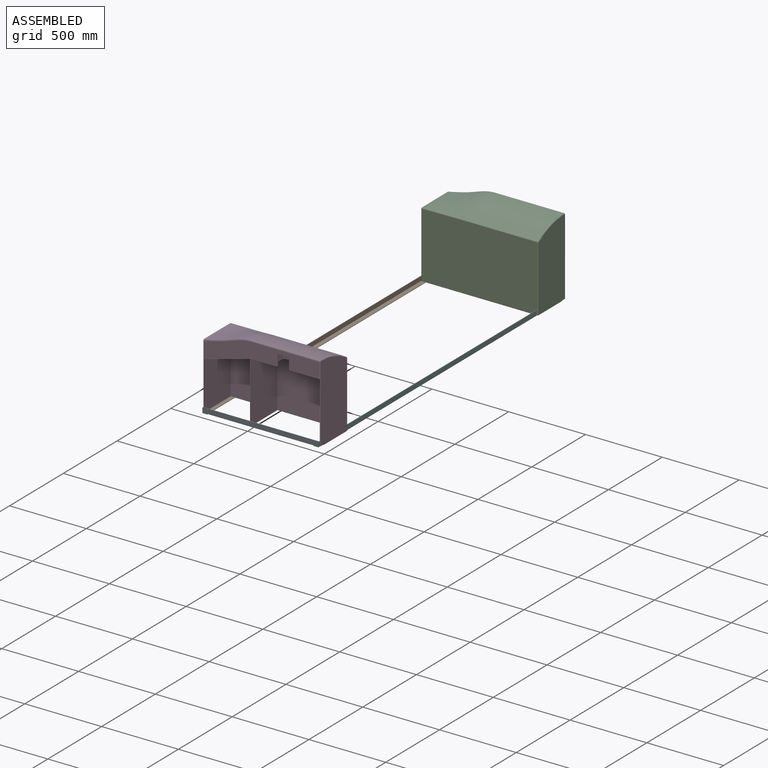
[diagram: assembled view]
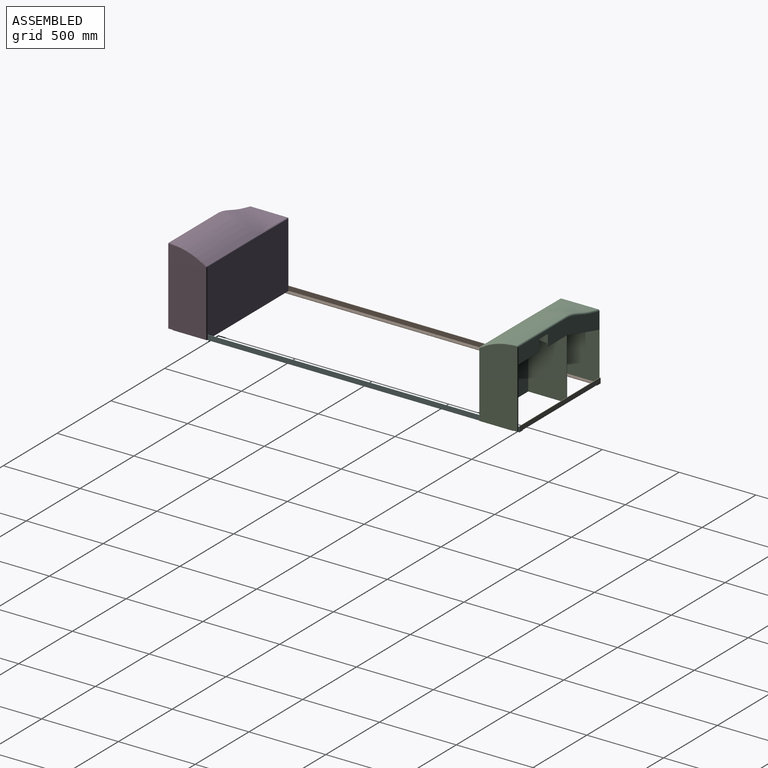
[diagram: assembled view, second angle]
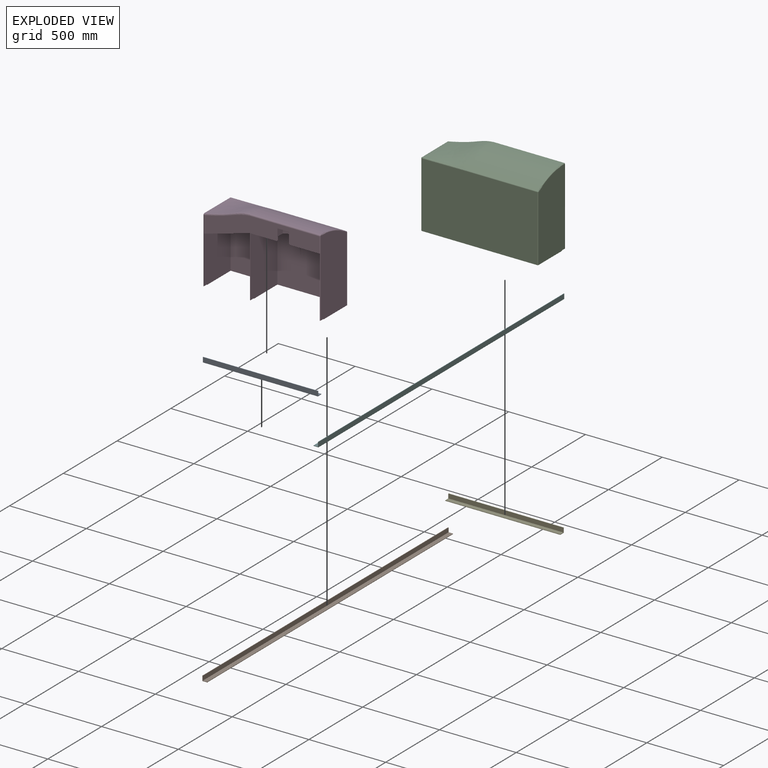
[diagram: exploded view]
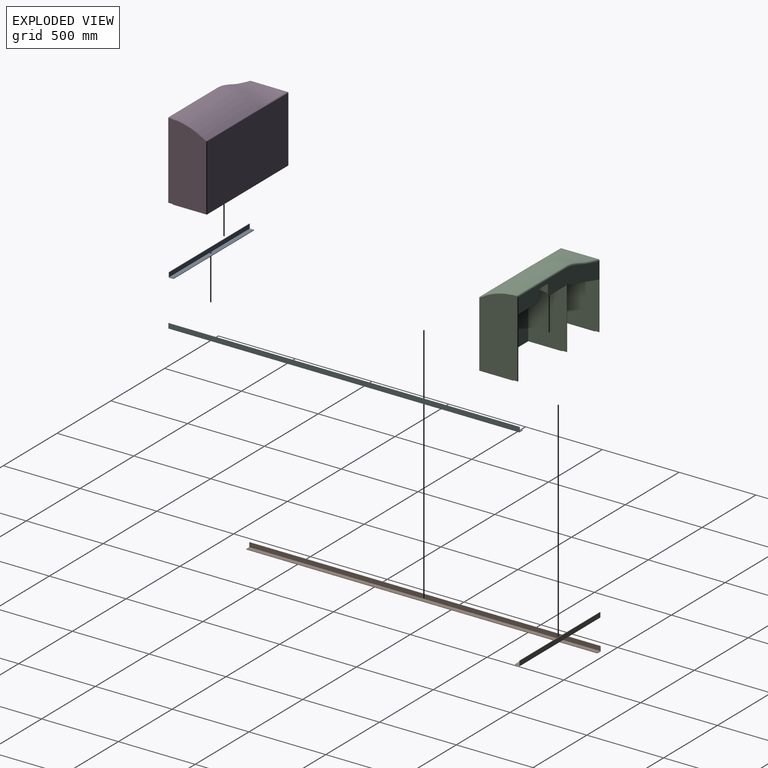
[diagram: exploded view, second angle]
ASSEMBLY  parts=6 mates=5
PART A: 8 faces, bbox 749.3x31.8x31.8 mm
  f0: plane 31.75x31.75mm, normal (1,0,0), area 191.5mm2, adj f2,f3,f4,f5,f6,f7
  f1: plane 31.75x31.75mm, normal (-1,0,0), area 191.5mm2, adj f2,f3,f4,f5,f6,f7
  f2: plane 749.3x3.18mm, normal (0,0,1), area 2379mm2, adj f0,f1,f5,f7
  f3: plane 749.3x31.75mm, normal (0,0,-1), area 23790.3mm2, adj f0,f1,f4,f5
  f4: plane 749.3x3.18mm, normal (0,1,0), area 2379mm2, adj f0,f1,f3,f6
  f5: plane 749.3x31.75mm, normal (0,-1,0), area 23790.3mm2, adj f0,f1,f2,f3
  f6: plane 749.3x28.58mm, normal (0,0,1), area 21411.2mm2, adj f0,f1,f4,f7
  f7: plane 749.3x28.58mm, normal (0,1,0), area 21411.2mm2, adj f0,f1,f2,f6
PART B: 8 faces, bbox 2286x31.8x31.8 mm
  f0: plane 2286x3.18mm, normal (0,0,1), area 7258.1mm2, adj f1,f2,f5,f7
  f1: plane 31.75x31.75mm, normal (1,0,0), area 191.5mm2, adj f0,f3,f4,f5,f6,f7
  f2: plane 31.75x31.75mm, normal (-1,0,0), area 191.5mm2, adj f0,f3,f4,f5,f6,f7
  f3: plane 2286x31.75mm, normal (0,0,-1), area 72580.5mm2, adj f1,f2,f4,f5
  f4: plane 2286x3.18mm, normal (0,1,0), area 7258.1mm2, adj f1,f2,f3,f6
  f5: plane 2286x31.75mm, normal (0,-1,0), area 72580.5mm2, adj f0,f1,f2,f3
  f6: plane 2286x28.58mm, normal (0,0,1), area 65322.4mm2, adj f1,f2,f4,f7
  f7: plane 2286x28.58mm, normal (0,1,0), area 65322.4mm2, adj f0,f1,f2,f6
PART C: 87 faces, bbox 278.7x783.5x551.9 mm
  f0: cylinder r=454.03mm len=146.05mm, axis (0,-1,0), area 10769.9mm2, adj f15,f16,f51,f74
  f1: cylinder r=454.03mm len=149.23mm, axis (0,-1,0), area 11004mm2, adj f12,f52,f54,f71
  f2: cylinder r=454.03mm len=149.23mm, axis (0,-1,0), area 11004mm2, adj f32,f33,f55,f68
  f3: plane 281.86x168.28mm, normal (0,1,0), area 18365.2mm2, adj f30,f31,f53,f66,f67
  f4: offset ~311.15x236.89mm, area 12990.7mm2, adj f9,f17,f58,f64
  f5: plane 247.49x165.44mm, normal (0,-1,0), area 17317.5mm2, adj f7,f37,f57,f63
  f6: offset ~511.13x260.91mm, area 12300.5mm2, adj f36,f38,f56,f60
  f7: plane 430.37x301.9mm, normal (1,0,0), area 128847mm2, adj f5,f8,f17,f18,f36,f37,f56,f57
  f8: offset ~260.44x199.93mm, area 24531.4mm2, adj f7,f36,f56,f59
  f9: plane 154.68x145.95mm, normal (-1,0,0), area 16528.6mm2, adj f4,f17,f39,f58
  f10: plane 149.23x101.6mm, normal (-1,0,0), area 9354.8mm2, adj f12,f40,f41,f42,f43,f44,f45,f46
  f11: cylinder r=454.03mm len=165.1mm, axis (0,-1,0), area 26751.3mm2, adj f30,f52,f54,f69
  f12: cylinder r=5.97mm len=149.23mm, axis (0,-1,0), area 1414.8mm2, adj f1,f10,f52,f54
  f13: plane 146.05x101.6mm, normal (-1,0,0), area 14838.7mm2, adj f15,f16,f48,f51
  f14: cylinder r=454.03mm len=165.1mm, axis (0,-1,0), area 26182.1mm2, adj f16,f30,f51,f72
  f15: cylinder r=5.97mm len=146.05mm, axis (0,-1,0), area 1384.7mm2, adj f0,f13,f16,f51
  f16: plane 504.76x250.45mm, normal (0,1,0), area 119735.9mm2, adj f0,f13,f14,f15,f18,f22,f23,f30
  f17: plane 504.96x251mm, normal (0,1,0), area 119702.3mm2, adj f4,f7,f9,f18,f19,f20,f21,f37
  f18: plane 762x222.25mm, normal (0,0,-1), area 4495mm2, adj f7,f16,f17,f19,f22,f24,f28,f29
  f19: plane 3.18x3.18mm, normal (1,0,0), area 10.1mm2, adj f17,f18,f20,f33
  f20: plane 31.75x3.18mm, normal (0,0,-1), area 100.8mm2, adj f17,f19,f21,f33
  f21: plane 756.33x500.1mm, normal (1,0,0), area 73851.5mm2, adj f17,f20,f26,f33,f35,f39,f40,f41
  f22: plane 3.18x3.18mm, normal (1,0,0), area 10.1mm2, adj f16,f18,f23,f29
  f23: plane 31.38x3.18mm, normal (0,0,-1), area 95.5mm2, adj f16,f22,f29,f75
  f24: plane 751.84x429.06mm, normal (-1,0,0), area 322275.4mm2, adj f18,f77,f80,f81,f82
  f25: cylinder r=457.2mm len=452.12mm, axis (0,-1,0), area 116191.5mm2, adj f26,f35,f78,f80
  f26: cylinder r=9.14mm len=452.12mm, axis (0,-1,0), area 6566.6mm2, adj f21,f25,f35,f76
  f27: plane 31.38x3.18mm, normal (0,0,-1), area 95.5mm2, adj f28,f34,f36,f86
  f28: plane 3.18x3.18mm, normal (1,0,0), area 10.1mm2, adj f18,f27,f34,f36
  f29: plane 502.85x243.84mm, normal (0,-1,0), area 116661.4mm2, adj f18,f22,f23,f75,f76,f77,f78
  f30: plane 450.85x430.09mm, normal (1,0,0), area 192541.5mm2, adj f3,f11,f14,f16,f18,f31,f33,f50
  f31: cylinder r=454.03mm len=165.1mm, axis (0,-1,0), area 26751.3mm2, adj f3,f30,f33,f66
  f32: cylinder r=5.97mm len=149.23mm, axis (0,-1,0), area 1414.8mm2, adj f2,f33,f49,f55
  f33: plane 504.76x250.83mm, normal (0,-1,0), area 119703mm2, adj f2,f18,f19,f20,f21,f30,f31,f32
  f34: plane 427.69x243.84mm, normal (0,1,0), area 104122.3mm2, adj f18,f27,f28,f81,f84,f85,f86
  f35: bspline ~304.8x254mm, area 79752.1mm2, adj f21,f25,f26,f82,f84,f85
  f36: plane 433.98x255.2mm, normal (0,-1,0), area 106860.6mm2, adj f6,f7,f8,f18,f27,f28,f38,f39
  f37: offset ~311.15x199.93mm, area 26877.1mm2, adj f5,f7,f17,f63
  f38: plane 149.23x146.66mm, normal (-1,0,0), area 15527.3mm2, adj f6,f36,f39,f56,f57
  f39: plane 301.63x82.34mm, normal (0,-0.26,-0.96), area 992.5mm2, adj f9,f17,f21,f36,f38,f86
  f40: plane 169.36x3.18mm, normal (0,0,-1), area 537.7mm2, adj f10,f21,f33,f41,f49,f53
  f41: cylinder r=6.35mm len=6.35mm, axis (1,0,0), area 31.7mm2, adj f10,f21,f40,f42
  f42: plane 63.5x3.18mm, normal (0,-1,0), area 201.6mm2, adj f10,f21,f41,f43
  f43: cylinder r=6.35mm len=6.35mm, axis (1,0,0), area 31.7mm2, adj f10,f21,f42,f44
  f44: plane 63.5x3.18mm, normal (0,0,-1), area 201.6mm2, adj f10,f21,f43,f45
  f45: cylinder r=6.35mm len=6.35mm, axis (1,0,0), area 31.7mm2, adj f10,f21,f44,f46
  f46: plane 63.5x3.18mm, normal (0,1,0), area 201.6mm2, adj f10,f21,f45,f47
  f47: cylinder r=6.35mm len=6.35mm, axis (1,0,0), area 31.7mm2, adj f10,f21,f46,f48
  f48: plane 192.59x3.18mm, normal (0,0,-1), area 611.2mm2, adj f10,f13,f16,f21,f47,f50,f75
  f49: plane 149.23x101.6mm, normal (-1,0,0), area 15161.3mm2, adj f32,f33,f40,f55
  f50: cylinder r=190.81mm len=247.65mm, axis (0,1,0), area 1134.9mm2, adj f30,f48,f51,f52
  f51: plane 289.71x247.65mm, normal (0,-1,0), area 26244.9mm2, adj f0,f13,f14,f15,f30,f50,f72,f73
  f52: plane 289.71x247.65mm, normal (0,1,0), area 26244.9mm2, adj f1,f10,f11,f12,f30,f50,f69,f70
  f53: cylinder r=190.81mm len=247.65mm, axis (0,1,0), area 1134.9mm2, adj f3,f30,f40,f54,f55
  f54: plane 289.71x247.65mm, normal (0,-1,0), area 26190.4mm2, adj f1,f10,f11,f12,f30,f53,f69,f70
  f55: plane 107.57x79.38mm, normal (0,1,0), area 7822.8mm2, adj f2,f32,f49,f53,f68
  f56: plane 250.98x247.91mm, normal (0,1,0), area 24670.3mm2, adj f6,f7,f8,f38,f57,f59,f60,f61
  f57: cylinder r=163.4mm len=247.65mm, axis (0,-1,0), area 1096mm2, adj f5,f7,f38,f56,f58,f62
  f58: plane 111.72x79.38mm, normal (0,-1,0), area 7520mm2, adj f4,f9,f57,f64
  f59: plane 147.08x83.94mm, normal (-1,0,0), area 9268.3mm2, adj f8,f36,f56,f61
  f60: plane 146.47x83.64mm, normal (1,0,0), area 9289.9mm2, adj f6,f36,f56,f61
  f61: cylinder r=811.85mm len=146.05mm, axis (1,0,0), area 464.3mm2, adj f36,f56,f59,f60
  f62: plane 3.18x0.06mm, normal (0,1,0), area 0.1mm2, adj f57,f63,f65
  f63: plane 155.26x150.65mm, normal (-1,0,0), area 17821.7mm2, adj f5,f17,f37,f62,f65
  f64: plane 155.17x151.16mm, normal (1,0,0), area 17897.4mm2, adj f4,f17,f58,f65
  f65: cylinder r=811.85mm len=152.4mm, axis (1,0,0), area 493.3mm2, adj f17,f62,f63,f64
  f66: plane 149.23x148.74mm, normal (-1,0,0), area 17462.5mm2, adj f3,f31,f33,f67
  f67: cylinder r=643.04mm len=149.23mm, axis (1,0,0), area 507.8mm2, adj f3,f33,f66,f68
  f68: plane 149.33x149.23mm, normal (1,0,0), area 17550.4mm2, adj f2,f33,f55,f67
  f69: plane 149.23x91.63mm, normal (-1,0,0), area 11950.6mm2, adj f11,f52,f54,f70
  f70: cylinder r=643.04mm len=149.23mm, axis (1,0,0), area 478mm2, adj f52,f54,f69,f71
  f71: plane 149.23x92.22mm, normal (1,0,0), area 12038.6mm2, adj f1,f52,f54,f70
  f72: plane 146.05x92.39mm, normal (-1,0,0), area 11769.9mm2, adj f14,f16,f51,f73
  f73: cylinder r=643.04mm len=146.05mm, axis (1,0,0), area 468.2mm2, adj f16,f51,f72,f74
  f74: plane 146.05x92.97mm, normal (1,0,0), area 11856mm2, adj f0,f16,f51,f73
  f75: cylinder r=5.08mm len=495.61mm, axis (0,0,-1), area 3185.4mm2, adj f16,f21,f23,f29,f48,f76
  f76: torus R=4.06mm, axis (0,-1,0), area 92.5mm2, adj f26,f29,f75,f78
  f77: cylinder r=5.08mm len=429.06mm, axis (0,0,1), area 3423.8mm2, adj f18,f24,f29,f79
  f78: torus R=452.12mm, axis (0,-1,0), area 2042.4mm2, adj f25,f29,f76,f79
  f79: sphere r=5.08mm, area 25.6mm2, adj f77,f78,f80
  f80: cylinder r=5.08mm len=452.12mm, axis (0,-1,0), area 2276.4mm2, adj f24,f25,f79,f82
  f81: cylinder r=5.08mm len=426.76mm, axis (0,0,-1), area 3405.4mm2, adj f18,f24,f34,f83
  f82: bspline ~395.27x6.72mm, area 1930.3mm2, adj f24,f35,f80,f83
  f83: sphere r=5.08mm, area 25.7mm2, adj f81,f82,f84
  f84: bspline ~255x6.01mm, area 1746.2mm2, adj f34,f35,f83,f85
  f85: bspline ~10.46x8.95mm, area 81mm2, adj f34,f35,f84,f86
  f86: cylinder r=5.08mm len=420.56mm, axis (0,0,-1), area 2748.5mm2, adj f21,f27,f34,f36,f39,f85
PART D: 87 faces, bbox 278.7x783.5x551.9 mm
  f0: cylinder r=454.03mm len=146.05mm, axis (0,-1,0), area 10769.9mm2, adj f15,f16,f51,f74
  f1: cylinder r=454.03mm len=149.23mm, axis (0,-1,0), area 11004mm2, adj f12,f52,f54,f71
  f2: cylinder r=454.03mm len=149.23mm, axis (0,-1,0), area 11004mm2, adj f32,f33,f55,f68
  f3: plane 281.86x168.28mm, normal (0,1,0), area 18365.2mm2, adj f30,f31,f53,f66,f67
  f4: offset ~311.15x236.89mm, area 12990.7mm2, adj f9,f17,f58,f64
  f5: plane 248.33x166.28mm, normal (0,-1,0), area 17317.6mm2, adj f7,f37,f57,f63
  f6: offset ~511.13x260.91mm, area 12300.5mm2, adj f36,f38,f56,f60
  f7: plane 430.37x301.9mm, normal (-1,0,0), area 128847mm2, adj f5,f8,f17,f18,f36,f37,f56,f57
  f8: offset ~260.44x199.93mm, area 24531.4mm2, adj f7,f36,f56,f59
  f9: plane 154.28x145.95mm, normal (1,0,0), area 16497.3mm2, adj f4,f17,f39,f58
  f10: plane 149.23x101.6mm, normal (1,0,0), area 9354.8mm2, adj f12,f40,f41,f42,f43,f44,f45,f46
  f11: cylinder r=454.03mm len=165.1mm, axis (0,-1,0), area 26751.3mm2, adj f30,f52,f54,f69
  f12: cylinder r=5.97mm len=149.23mm, axis (0,-1,0), area 1414.8mm2, adj f1,f10,f52,f54
  f13: plane 146.05x101.6mm, normal (1,0,0), area 14838.7mm2, adj f15,f16,f48,f51
  f14: cylinder r=454.03mm len=165.1mm, axis (0,-1,0), area 26182.1mm2, adj f16,f30,f51,f72
  f15: cylinder r=5.97mm len=146.05mm, axis (0,-1,0), area 1384.7mm2, adj f0,f13,f16,f51
  f16: plane 504.76x250.45mm, normal (0,1,0), area 119735.9mm2, adj f0,f13,f14,f15,f18,f22,f23,f30
  f17: plane 504.96x251mm, normal (0,1,0), area 119705.1mm2, adj f4,f7,f9,f18,f19,f20,f21,f37
  f18: plane 762x222.25mm, normal (0,0,-1), area 4495mm2, adj f7,f16,f17,f19,f22,f24,f28,f29
  f19: plane 3.18x3.18mm, normal (-1,0,0), area 10.1mm2, adj f17,f18,f20,f33
  f20: plane 31.75x3.18mm, normal (0,0,-1), area 100.8mm2, adj f17,f19,f21,f33
  f21: plane 757.28x500.1mm, normal (-1,0,0), area 73851.5mm2, adj f17,f20,f26,f33,f35,f39,f40,f41
  f22: plane 3.18x3.18mm, normal (-1,0,0), area 10.1mm2, adj f16,f18,f23,f29
  f23: plane 31.38x3.18mm, normal (0,0,-1), area 95.5mm2, adj f16,f22,f29,f75
  f24: plane 751.84x429.06mm, normal (1,0,0), area 322275.4mm2, adj f18,f77,f80,f81,f82
  f25: cylinder r=457.2mm len=452.12mm, axis (0,-1,0), area 116191.5mm2, adj f26,f35,f78,f80
  f26: cylinder r=9.14mm len=452.12mm, axis (0,-1,0), area 6566.6mm2, adj f21,f25,f35,f76
  f27: plane 31.38x3.18mm, normal (0,0,-1), area 95.5mm2, adj f28,f34,f36,f86
  f28: plane 3.18x3.18mm, normal (-1,0,0), area 10.1mm2, adj f18,f27,f34,f36
  f29: plane 502.85x243.84mm, normal (0,-1,0), area 116661.4mm2, adj f18,f22,f23,f75,f76,f77,f78
  f30: plane 450.85x430.09mm, normal (-1,0,0), area 192541.5mm2, adj f3,f11,f14,f16,f18,f31,f33,f50
  f31: cylinder r=454.03mm len=165.1mm, axis (0,-1,0), area 26751.3mm2, adj f3,f30,f33,f66
  f32: cylinder r=5.97mm len=149.23mm, axis (0,-1,0), area 1414.8mm2, adj f2,f33,f49,f55
  f33: plane 504.76x250.83mm, normal (0,-1,0), area 119703mm2, adj f2,f18,f19,f20,f21,f30,f31,f32
  f34: plane 427.69x243.84mm, normal (0,1,0), area 104122.3mm2, adj f18,f27,f28,f81,f84,f85,f86
  f35: bspline ~304.8x254mm, area 79752.1mm2, adj f21,f25,f26,f82,f84,f85
  f36: plane 433.98x255.2mm, normal (0,-1,0), area 106860.6mm2, adj f6,f7,f8,f18,f27,f28,f38,f39
  f37: offset ~311.15x199.93mm, area 26877.1mm2, adj f5,f7,f17,f63
  f38: plane 149.23x145.63mm, normal (1,0,0), area 15526.5mm2, adj f6,f36,f39,f56,f57
  f39: plane 301.63x82.34mm, normal (0,-0.26,-0.96), area 992.5mm2, adj f9,f17,f21,f36,f38,f86
  f40: plane 169.36x3.18mm, normal (0,0,-1), area 537.7mm2, adj f10,f21,f33,f41,f49,f53
  f41: cylinder r=6.35mm len=6.35mm, axis (-1,0,0), area 31.7mm2, adj f10,f21,f40,f42
  f42: plane 63.5x3.18mm, normal (0,-1,0), area 201.6mm2, adj f10,f21,f41,f43
  f43: cylinder r=6.35mm len=6.35mm, axis (-1,0,0), area 31.7mm2, adj f10,f21,f42,f44
  f44: plane 63.5x3.18mm, normal (0,0,-1), area 201.6mm2, adj f10,f21,f43,f45
  f45: cylinder r=6.35mm len=6.35mm, axis (-1,0,0), area 31.7mm2, adj f10,f21,f44,f46
  f46: plane 63.5x3.18mm, normal (0,1,0), area 201.6mm2, adj f10,f21,f45,f47
  f47: cylinder r=6.35mm len=6.35mm, axis (-1,0,0), area 31.7mm2, adj f10,f21,f46,f48
  f48: plane 192.59x3.18mm, normal (0,0,-1), area 611.2mm2, adj f10,f13,f16,f21,f47,f50,f75
  f49: plane 149.23x101.6mm, normal (1,0,0), area 15161.3mm2, adj f32,f33,f40,f55
  f50: cylinder r=190.81mm len=247.65mm, axis (0,1,0), area 1134.9mm2, adj f30,f48,f51,f52
  f51: plane 289.71x247.65mm, normal (0,-1,0), area 26244.9mm2, adj f0,f13,f14,f15,f30,f50,f72,f73
  f52: plane 289.71x247.65mm, normal (0,1,0), area 26244.9mm2, adj f1,f10,f11,f12,f30,f50,f69,f70
  f53: cylinder r=190.81mm len=247.65mm, axis (0,1,0), area 1134.9mm2, adj f3,f30,f40,f54,f55
  f54: plane 289.71x247.65mm, normal (0,-1,0), area 26190.4mm2, adj f1,f10,f11,f12,f30,f53,f69,f70
  f55: plane 107.57x79.38mm, normal (0,1,0), area 7822.8mm2, adj f2,f32,f49,f53,f68
  f56: plane 250.98x247.91mm, normal (0,1,0), area 24670.3mm2, adj f6,f7,f8,f38,f57,f59,f60,f61
  f57: cylinder r=163.4mm len=247.65mm, axis (0,-1,0), area 1096mm2, adj f5,f7,f38,f56,f58,f62
  f58: plane 111.72x79.43mm, normal (0,-1,0), area 7520mm2, adj f4,f9,f57,f64
  f59: plane 147.08x83.94mm, normal (1,0,0), area 9268.3mm2, adj f8,f36,f56,f61
  f60: plane 146.47x83.64mm, normal (-1,0,0), area 9289.9mm2, adj f6,f36,f56,f61
  f61: cylinder r=811.85mm len=146.05mm, axis (-1,0,0), area 464.3mm2, adj f36,f56,f59,f60
  f62: plane 3.18x0.06mm, normal (0,1,0), area 0.1mm2, adj f57,f63,f65
  f63: plane 155.26x150.65mm, normal (1,0,0), area 17821.7mm2, adj f5,f17,f37,f62,f65
  f64: plane 155.17x151.16mm, normal (-1,0,0), area 17897.4mm2, adj f4,f17,f58,f65
  f65: cylinder r=811.85mm len=152.4mm, axis (-1,0,0), area 493.3mm2, adj f17,f62,f63,f64
  f66: plane 149.23x148.74mm, normal (1,0,0), area 17462.5mm2, adj f3,f31,f33,f67
  f67: cylinder r=643.04mm len=149.23mm, axis (-1,0,0), area 507.8mm2, adj f3,f33,f66,f68
  f68: plane 149.33x149.23mm, normal (-1,0,0), area 17550.4mm2, adj f2,f33,f55,f67
  f69: plane 149.23x91.63mm, normal (1,0,0), area 11950.6mm2, adj f11,f52,f54,f70
  f70: cylinder r=643.04mm len=149.23mm, axis (-1,0,0), area 478mm2, adj f52,f54,f69,f71
  f71: plane 149.23x92.22mm, normal (-1,0,0), area 12038.6mm2, adj f1,f52,f54,f70
  f72: plane 146.05x92.39mm, normal (1,0,0), area 11769.9mm2, adj f14,f16,f51,f73
  f73: cylinder r=643.04mm len=146.05mm, axis (-1,0,0), area 468.2mm2, adj f16,f51,f72,f74
  f74: plane 146.05x92.97mm, normal (-1,0,0), area 11856mm2, adj f0,f16,f51,f73
  f75: cylinder r=5.08mm len=495.61mm, axis (0,0,-1), area 3185.4mm2, adj f16,f21,f23,f29,f48,f76
  f76: torus R=4.06mm, axis (0,-1,0), area 92.5mm2, adj f26,f29,f75,f78
  f77: cylinder r=5.08mm len=429.06mm, axis (0,0,1), area 3423.8mm2, adj f18,f24,f29,f79
  f78: torus R=452.12mm, axis (0,-1,0), area 2042.4mm2, adj f25,f29,f76,f79
  f79: sphere r=5.08mm, area 25.6mm2, adj f77,f78,f80
  f80: cylinder r=5.08mm len=452.12mm, axis (0,-1,0), area 2276.4mm2, adj f24,f25,f79,f82
  f81: cylinder r=5.08mm len=426.76mm, axis (0,0,-1), area 3405.4mm2, adj f18,f24,f34,f83
  f82: bspline ~395.27x6.72mm, area 1930.3mm2, adj f24,f35,f80,f83
  f83: sphere r=5.08mm, area 25.7mm2, adj f81,f82,f84
  f84: bspline ~255x6.01mm, area 1746.2mm2, adj f34,f35,f83,f85
  f85: bspline ~14.39x8.95mm, area 81mm2, adj f34,f35,f84,f86
  f86: cylinder r=5.08mm len=420.56mm, axis (0,0,-1), area 2748.5mm2, adj f21,f27,f34,f36,f39,f85
PART E: same geometry as A
PART F: same geometry as B
PLACE A t=(-604.9,-2286.33,-131.83)mm
PLACE B rot(axis=(0,0,-1),90deg) t=(156.44,-164.52,-13.48)mm
PLACE C rot(axis=(0,0,1),90deg) t=(921.61,-784.56,155.87)mm
PLACE D rot(axis=(0,0,1),90deg) t=(921.61,-2251.41,155.87)mm
PLACE E rot(axis=(0,0,1),180deg) t=(1673.43,-0.33,-131.83)mm
PLACE F rot(axis=(0,0,1),90deg) t=(912.09,-2122.14,-13.48)mm
MATE fastened B.f6 <-> A.f3  axis (0,0,1) through (159.61,-2286.33,9.1)mm
MATE fastened F.f6 <-> A.f3  axis (0,0,1) through (908.91,-2286.33,9.1)mm
MATE fastened C.f27 <-> E.f6  axis (0,0,-1) through (159.61,-35.26,12.28)mm
MATE fastened E.f3 <-> F.f6  axis (0,0,-1) through (908.91,-0.33,9.1)mm
MATE fastened D.f27 <-> A.f6  axis (0,0,-1) through (159.61,-2251.41,12.28)mm
